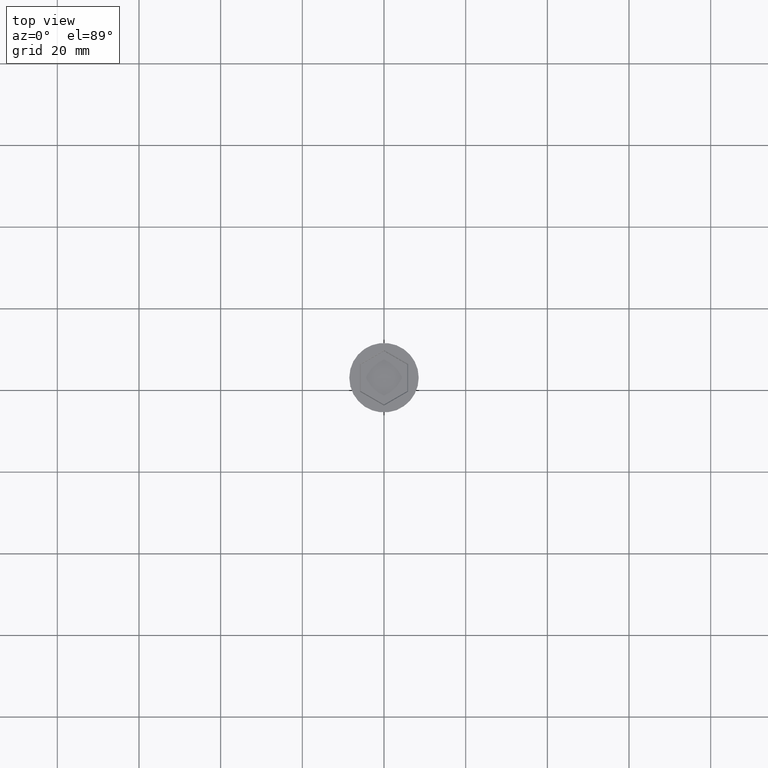
[diagram: clean part render]
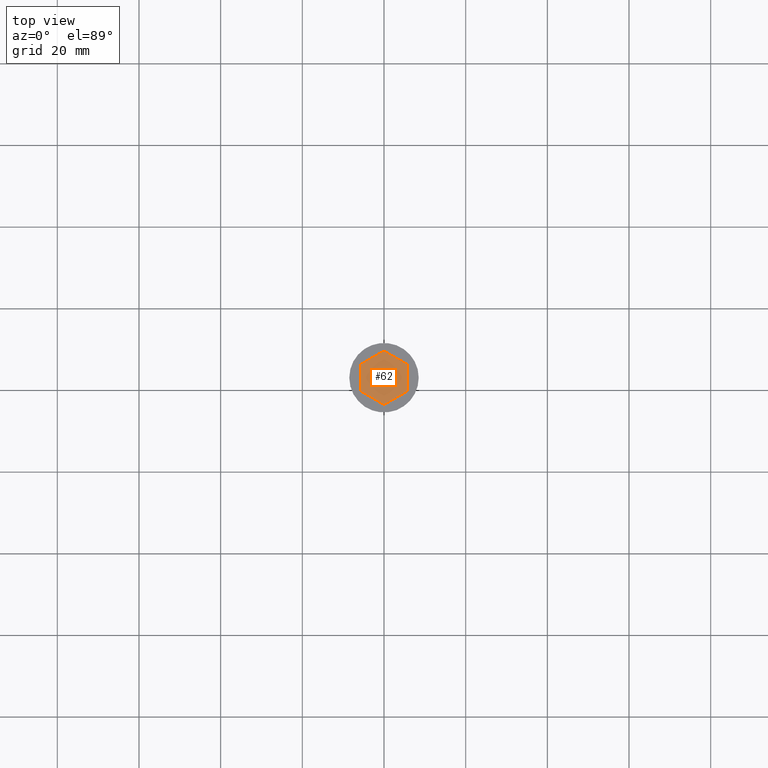
[diagram: same view with one face highlighted and labeled with its STEP entity id]
A machine part, top view. The second image highlights one B-rep face of the part: STEP entity #62.
In plain terms, the highlighted planar face has unit normal (-0, 0, 1).
Its self-contained STEP definition (entity closure, byte-faithful):
#29 = EDGE_CURVE ( 'NONE', #1200, #756, #938, .T. ) ;
#62 = ADVANCED_FACE ( 'NONE', ( #371 ), #219, .T. ) ;
#100 = EDGE_CURVE ( 'NONE', #959, #1374, #1283, .T. ) ;
#107 = CARTESIAN_POINT ( 'NONE',  ( 5.700000000000000178, 3.290896534380866711, -2.000000000000000000 ) ) ;
#207 = DIRECTION ( 'NONE',  ( 0.8660254037844387076, 0.4999999999999998890, 0.000000000000000000 ) ) ;
#219 = PLANE ( 'NONE',  #1516 ) ;
#222 = VECTOR ( 'NONE', #207, 1000.000000000000000 ) ;
#231 = DIRECTION ( 'NONE',  ( 0.8660254037844385966, -0.5000000000000000000, 0.000000000000000000 ) ) ;
#295 = ORIENTED_EDGE ( 'NONE', *, *, #100, .T. ) ;
#321 = ORIENTED_EDGE ( 'NONE', *, *, #1210, .T. ) ;
#360 = EDGE_CURVE ( 'NONE', #641, #1200, #1030, .T. ) ;
#370 = CARTESIAN_POINT ( 'NONE',  ( -5.699999999999999289, 3.290896534380865823, -2.000000000000000000 ) ) ;
#371 = FACE_OUTER_BOUND ( 'NONE', #1156, .T. ) ;
#402 = VECTOR ( 'NONE', #1477, 1000.000000000000000 ) ;
#505 = CARTESIAN_POINT ( 'NONE',  ( -5.699999999999999289, 3.290896534380865823, -2.000000000000000000 ) ) ;
#622 = VECTOR ( 'NONE', #231, 1000.000000000000227 ) ;
#641 = VERTEX_POINT ( 'NONE', #1216 ) ;
#685 = ORIENTED_EDGE ( 'NONE', *, *, #29, .T. ) ;
#706 = ORIENTED_EDGE ( 'NONE', *, *, #360, .T. ) ;
#756 = VERTEX_POINT ( 'NONE', #1474 ) ;
#787 = DIRECTION ( 'NONE',  ( -1.317819823453648788E-16, -1.000000000000000000, 0.000000000000000000 ) ) ;
#843 = CARTESIAN_POINT ( 'NONE',  ( 0.000000000000000000, 0.000000000000000000, -2.000000000000000000 ) ) ;
#844 = EDGE_CURVE ( 'NONE', #1374, #641, #932, .T. ) ;
#894 = ORIENTED_EDGE ( 'NONE', *, *, #1316, .T. ) ;
#932 = LINE ( 'NONE', #1258, #222 ) ;
#938 = LINE ( 'NONE', #1410, #995 ) ;
#943 = CARTESIAN_POINT ( 'NONE',  ( -5.700000000000000178, -3.290896534380866711, -2.000000000000000000 ) ) ;
#959 = VERTEX_POINT ( 'NONE', #1077 ) ;
#962 = DIRECTION ( 'NONE',  ( -0.8660254037844387076, 0.4999999999999997224, 0.000000000000000000 ) ) ;
#995 = VECTOR ( 'NONE', #962, 1000.000000000000114 ) ;
#1030 = LINE ( 'NONE', #1471, #402 ) ;
#1077 = CARTESIAN_POINT ( 'NONE',  ( -5.700000000000000178, -3.290896534380866711, -2.000000000000000000 ) ) ;
#1156 = EDGE_LOOP ( 'NONE', ( #685, #321, #894, #295, #1221, #706 ) ) ;
#1200 = VERTEX_POINT ( 'NONE', #107 ) ;
#1210 = EDGE_CURVE ( 'NONE', #756, #1312, #1520, .T. ) ;
#1216 = CARTESIAN_POINT ( 'NONE',  ( 5.699999999999997513, -3.290896534380868488, -2.000000000000000000 ) ) ;
#1221 = ORIENTED_EDGE ( 'NONE', *, *, #844, .T. ) ;
#1258 = CARTESIAN_POINT ( 'NONE',  ( -1.301042606982605321E-15, -6.581793068761733423, -2.000000000000000000 ) ) ;
#1259 = CARTESIAN_POINT ( 'NONE',  ( -1.301042606982605321E-15, -6.581793068761733423, -2.000000000000000000 ) ) ;
#1264 = DIRECTION ( 'NONE',  ( 1.000000000000000000, 0.000000000000000000, 0.000000000000000000 ) ) ;
#1283 = LINE ( 'NONE', #943, #622 ) ;
#1289 = CARTESIAN_POINT ( 'NONE',  ( -4.336808689942017736E-16, 6.581793068761731647, -2.000000000000000000 ) ) ;
#1312 = VERTEX_POINT ( 'NONE', #505 ) ;
#1316 = EDGE_CURVE ( 'NONE', #1312, #959, #1426, .T. ) ;
#1321 = VECTOR ( 'NONE', #787, 1000.000000000000000 ) ;
#1374 = VERTEX_POINT ( 'NONE', #1259 ) ;
#1398 = VECTOR ( 'NONE', #1497, 1000.000000000000114 ) ;
#1405 = DIRECTION ( 'NONE',  ( -0.000000000000000000, 0.000000000000000000, 1.000000000000000000 ) ) ;
#1410 = CARTESIAN_POINT ( 'NONE',  ( 5.700000000000000178, 3.290896534380866711, -2.000000000000000000 ) ) ;
#1426 = LINE ( 'NONE', #370, #1321 ) ;
#1471 = CARTESIAN_POINT ( 'NONE',  ( 5.699999999999997513, -3.290896534380868488, -2.000000000000000000 ) ) ;
#1474 = CARTESIAN_POINT ( 'NONE',  ( -4.336808689942017736E-16, 6.581793068761731647, -2.000000000000000000 ) ) ;
#1477 = DIRECTION ( 'NONE',  ( 3.953459470360945130E-16, 1.000000000000000000, 0.000000000000000000 ) ) ;
#1497 = DIRECTION ( 'NONE',  ( -0.8660254037844385966, -0.4999999999999999445, 0.000000000000000000 ) ) ;
#1516 = AXIS2_PLACEMENT_3D ( 'NONE', #843, #1405, #1264 ) ;
#1520 = LINE ( 'NONE', #1289, #1398 ) ;